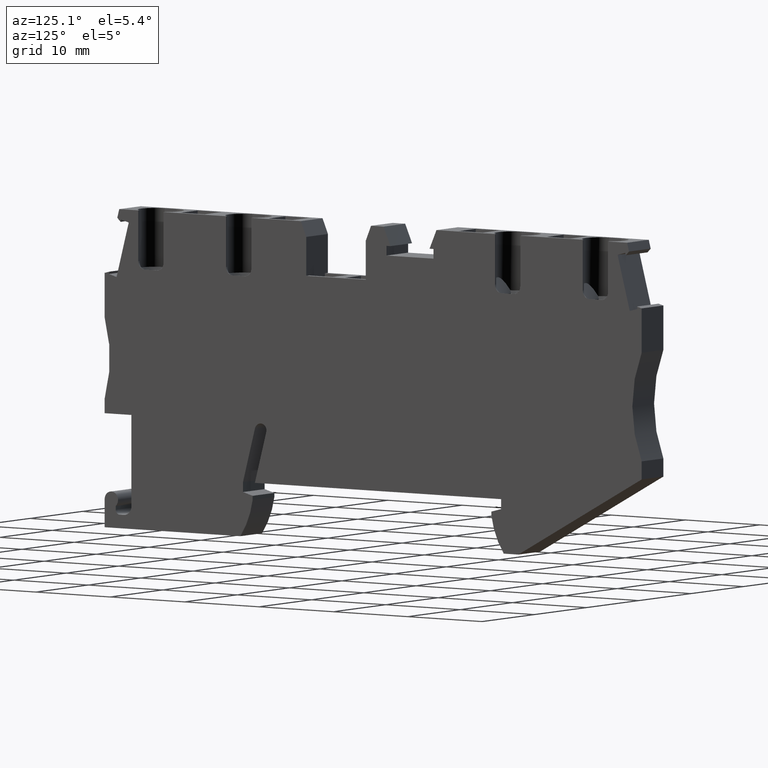
[diagram: clean part render]
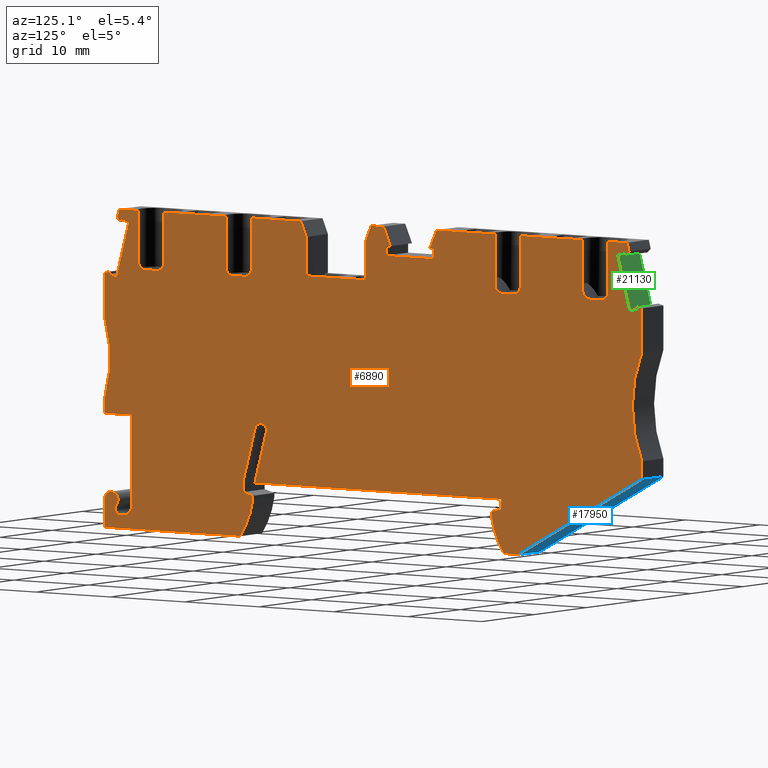
[diagram: same view with three faces highlighted in distinct colors, each labeled with its STEP entity id]
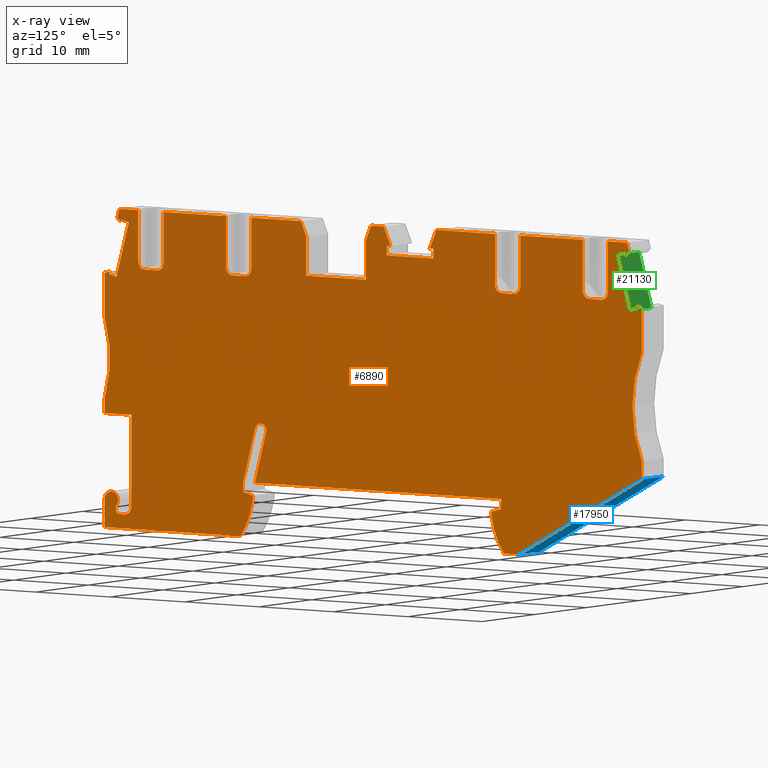
[diagram: x-ray of the same camera — body ghosted, the three highlighted faces saturated]
A machine part, auxiliary view with three faces highlighted in distinct colors.
The next image is the same camera in x-ray (body ghosted, the three faces saturated) — at least one of them is partly hidden behind the body in this view.
Their STEP definitions:

[orange] entity #6890 — the highlighted planar face has unit normal (1, 0, -0).
#10=CARTESIAN_POINT('',(12.2252624823554,27.1050428109026,
4.44089209850063E-16));
#20=DIRECTION('',(0.,0.,1.));
#30=DIRECTION('',(-0.992546151641322,-0.121869343405147,0.));
#40=AXIS2_PLACEMENT_3D('',#10,#20,#30);
#50=PLANE('',#40);
#60=CARTESIAN_POINT('',(19.8437546422496,-8.88178419700125E-15,
-8.88178419700125E-16));
#70=DIRECTION('',(0.139173100960126,0.990268068741562,0.));
#80=VECTOR('',#70,1.);
#90=LINE('',#60,#80);
#100=CARTESIAN_POINT('',(20.1680133300546,2.30722044942675,
4.44089209850063E-16));
#110=VERTEX_POINT('',#100);
#120=CARTESIAN_POINT('',(20.9898097165992,8.15460557620848,
4.44089209850063E-16));
#130=VERTEX_POINT('',#120);
#140=EDGE_CURVE('',#110,#130,#90,.T.);
#150=ORIENTED_EDGE('',*,*,#140,.F.);
#160=CARTESIAN_POINT('',(20.2966220684799,8.25202674688054,
-8.88178419700125E-16));
#170=DIRECTION('',(0.,0.,1.));
#180=DIRECTION('',(0.992546151641322,0.121869343405147,0.));
#190=AXIS2_PLACEMENT_3D('',#160,#170,#180);
#200=CIRCLE('',#190,0.700000000000238);
#210=CARTESIAN_POINT('',(20.3722274973531,8.947931782877,
4.44089209850063E-16));
#220=VERTEX_POINT('',#210);
#230=EDGE_CURVE('',#130,#220,#200,.T.);
#240=ORIENTED_EDGE('',*,*,#230,.F.);
#250=CARTESIAN_POINT('',(20.2376660574214,8.15932971663349,
-8.88178419700125E-16));
#260=DIRECTION('',(0.,0.,1.));
#270=DIRECTION('',(0.992546151641322,0.121869343405147,0.));
#280=AXIS2_PLACEMENT_3D('',#250,#260,#270);
#290=CIRCLE('',#280,0.80000000000001);
#300=CARTESIAN_POINT('',(19.4454516024282,8.27066819740211,
4.44089209850063E-16));
#310=VERTEX_POINT('',#300);
#320=EDGE_CURVE('',#220,#310,#290,.T.);
#330=ORIENTED_EDGE('',*,*,#320,.F.);
#340=CARTESIAN_POINT('',(18.2830849904164,-8.88178419700125E-15,
-8.88178419700125E-16));
#350=DIRECTION('',(0.139173100960267,0.990268068741542,0.));
#360=VECTOR('',#350,1.);
#370=LINE('',#340,#360);
#380=CARTESIAN_POINT('',(18.5799394874287,2.11222949998677,
4.44089209850063E-16));
#390=VERTEX_POINT('',#380);
#400=EDGE_CURVE('',#390,#310,#370,.T.);
#410=ORIENTED_EDGE('',*,*,#400,.T.);
#420=CARTESIAN_POINT('',(18.83928865911,-5.32907051820075E-15,
-8.88178419700125E-16));
#430=DIRECTION('',(0.121869343405147,-0.992546151641322,0.));
#440=VECTOR('',#430,1.);
#450=LINE('',#420,#440);
#460=CARTESIAN_POINT('',(18.7139957651747,1.02042873317322,
4.44089209850063E-16));
#470=VERTEX_POINT('',#460);
#480=EDGE_CURVE('',#390,#470,#450,.T.);
#490=ORIENTED_EDGE('',*,*,#480,.F.);
#500=CARTESIAN_POINT('',(-1.75415237890775E-14,3.65050931862992,
-8.88178419700125E-16));
#510=DIRECTION('',(0.990268068741556,-0.13917310096017,0.));
#520=VECTOR('',#510,1.);
#530=LINE('',#500,#520);
#540=CARTESIAN_POINT('',(20.0467569920995,0.833121357882088,
4.44089209850063E-16));
#550=VERTEX_POINT('',#540);
#560=EDGE_CURVE('',#470,#550,#530,.T.);
#570=ORIENTED_EDGE('',*,*,#560,.F.);
#580=CARTESIAN_POINT('',(20.1490514322064,-8.88178419700125E-15,
-8.88178419700125E-16));
#590=DIRECTION('',(0.121869343405772,-0.992546151641245,0.));
#600=VECTOR('',#590,1.);
#610=LINE('',#580,#600);
#620=CARTESIAN_POINT('',(20.1018012370322,0.384821958285938,
4.44089209850063E-16));
#630=VERTEX_POINT('',#620);
#640=EDGE_CURVE('',#550,#630,#610,.T.);
#650=ORIENTED_EDGE('',*,*,#640,.F.);
#660=CARTESIAN_POINT('',(10.6053593749794,0.644806497501682,
-8.88178419700125E-16));
#670=DIRECTION('',(0.,0.,1.));
#680=DIRECTION('',(0.992546151641322,0.121869343405147,0.));
#690=AXIS2_PLACEMENT_3D('',#660,#670,#680);
#700=CIRCLE('',#690,9.49999999999899);
#710=CARTESIAN_POINT('',(18.9548874062865,-3.88679163719611,
4.44089209850063E-16));
#720=VERTEX_POINT('',#710);
#730=EDGE_CURVE('',#720,#630,#700,.T.);
#740=ORIENTED_EDGE('',*,*,#730,.T.);
#750=CARTESIAN_POINT('',(-1.75415237890775E-14,-6.2141591643413,
-8.88178419700125E-16));
#760=DIRECTION('',(-0.99254615164132,-0.121869343405163,0.));
#770=VECTOR('',#760,1.);
#780=LINE('',#750,#770);
#790=CARTESIAN_POINT('',(0.849796820895289,-6.10981723483097,
4.44089209850063E-16));
#800=VERTEX_POINT('',#790);
#810=EDGE_CURVE('',#720,#800,#780,.T.);
#820=ORIENTED_EDGE('',*,*,#810,.F.);
#830=CARTESIAN_POINT('',(0.0996055945219576,-5.32907051820075E-15,
-8.88178419700125E-16));
#840=DIRECTION('',(-0.121869343404765,0.992546151641369,0.));
#850=VECTOR('',#840,1.);
#860=LINE('',#830,#850);
#870=CARTESIAN_POINT('',(0.472001856340509,-3.03292416474266,
-8.88178419700125E-16));
#880=VERTEX_POINT('',#870);
#890=EDGE_CURVE('',#800,#880,#860,.T.);
#900=ORIENTED_EDGE('',*,*,#890,.F.);
#910=CARTESIAN_POINT('',(1.36529339281751,-2.92324175567805,
-8.88178419700125E-16));
#920=DIRECTION('',(0.,0.,1.));
#930=DIRECTION('',(0.992546151641322,0.121869343405147,0.));
#940=AXIS2_PLACEMENT_3D('',#910,#920,#930);
#950=CIRCLE('',#940,0.89999999999984);
#960=CARTESIAN_POINT('',(2.0425735246699,-3.51594034939811,
4.44089209850063E-16));
#970=VERTEX_POINT('',#960);
#980=EDGE_CURVE('',#970,#880,#950,.T.);
#990=ORIENTED_EDGE('',*,*,#980,.T.);
#1000=CARTESIAN_POINT('',(1.61087033270068,1.24344978758018E-14,
-8.88178419700125E-16));
#1010=DIRECTION('',(-0.121869343407251,0.992546151641064,0.));
#1020=VECTOR('',#1010,1.);
#1030=LINE('',#1000,#1020);
#1040=CARTESIAN_POINT('',(2.09487736154829,-3.94192091644054,0.));
#1050=VERTEX_POINT('',#1040);
#1060=EDGE_CURVE('',#1050,#970,#1030,.T.);
#1070=ORIENTED_EDGE('',*,*,#1060,.T.);
#1080=CARTESIAN_POINT('',(2.59115043736805,-3.88098624473807,
-8.88178419700125E-16));
#1090=DIRECTION('',(-6.71275798814157E-33,5.46710265425285E-32,1.));
#1100=DIRECTION('',(0.992546151641322,0.121869343405147,
6.12247004823167E-45));
#1110=AXIS2_PLACEMENT_3D('',#1080,#1090,#1100);
#1120=CIRCLE('',#1110,0.499999999999091);
#1130=CARTESIAN_POINT('',(2.65208510907052,-4.37725932055782,0.));
#1140=VERTEX_POINT('',#1130);
#1150=EDGE_CURVE('',#1050,#1140,#1120,.T.);
#1160=ORIENTED_EDGE('',*,*,#1150,.F.);
#1170=CARTESIAN_POINT('',(-1.75415237890775E-14,-4.7028944261531,
-8.88178419700125E-16));
#1180=DIRECTION('',(-0.992546151641322,-0.121869343405147,0.));
#1190=VECTOR('',#1180,1.);
#1200=LINE('',#1170,#1190);
#1210=CARTESIAN_POINT('',(3.24761280005544,-4.30413771451564,0.));
#1220=VERTEX_POINT('',#1210);
#1230=EDGE_CURVE('',#1220,#1140,#1200,.T.);
#1240=ORIENTED_EDGE('',*,*,#1230,.T.);
#1250=CARTESIAN_POINT('',(3.12574345665028,-3.31159156287432,
-8.88178419700125E-16));
#1260=DIRECTION('',(-6.71275798814157E-33,5.46710265425285E-32,1.));
#1270=DIRECTION('',(0.992546151641322,0.121869343405147,
6.12247004823167E-45));
#1280=AXIS2_PLACEMENT_3D('',#1250,#1260,#1270);
#1290=CIRCLE('',#1280,1.);
#1300=CARTESIAN_POINT('',(4.1182896082916,-3.18972221946917,0.));
#1310=VERTEX_POINT('',#1300);
#1320=EDGE_CURVE('',#1220,#1310,#1290,.T.);
#1330=ORIENTED_EDGE('',*,*,#1320,.F.);
#1340=CARTESIAN_POINT('',(3.72664096617183,-5.32907051820075E-15,
-8.88178419700125E-16));
#1350=DIRECTION('',(-0.121869343405147,0.992546151641322,0.));
#1360=VECTOR('',#1350,1.);
#1370=LINE('',#1340,#1360);
#1380=CARTESIAN_POINT('',(2.88740923989949,6.83499391210909,
4.44089209850063E-16));
#1390=VERTEX_POINT('',#1380);
#1400=EDGE_CURVE('',#1310,#1390,#1370,.T.);
#1410=ORIENTED_EDGE('',*,*,#1400,.F.);
#1420=CARTESIAN_POINT('',(-2.46469511466785E-14,6.48046463644104,
-8.88178419700125E-16));
#1430=DIRECTION('',(-0.992546151641322,-0.121869343405147,0.));
#1440=VECTOR('',#1430,1.);
#1450=LINE('',#1420,#1440);
#1460=CARTESIAN_POINT('',(-0.685756599573967,6.39626431347608,
4.44089209850063E-16));
#1470=VERTEX_POINT('',#1460);
#1480=EDGE_CURVE('',#1390,#1470,#1450,.T.);
#1490=ORIENTED_EDGE('',*,*,#1480,.F.);
#1500=CARTESIAN_POINT('',(0.0996059055751284,-5.32907051820075E-15,
-8.88178419700125E-16));
#1510=DIRECTION('',(-0.12186934340515,0.992546151641322,0.));
#1520=VECTOR('',#1510,1.);
#1530=LINE('',#1500,#1520);
#1540=CARTESIAN_POINT('',(-0.880747549022022,7.98433815610068,
4.44089209850063E-16));
#1550=VERTEX_POINT('',#1540);
#1560=EDGE_CURVE('',#1470,#1550,#1530,.T.);
#1570=ORIENTED_EDGE('',*,*,#1560,.F.);
#1580=CARTESIAN_POINT('',(-15.631589843338,10.7069566766095,
-8.88178419700125E-16));
#1590=DIRECTION('',(0.,0.,1.));
#1600=DIRECTION('',(0.992546151641322,0.121869343405147,0.));
#1610=AXIS2_PLACEMENT_3D('',#1580,#1590,#1600);
#1620=CIRCLE('',#1610,15.);
#1630=CARTESIAN_POINT('',(-1.9775716396687,16.9172535208728,
4.44089209850063E-16));
#1640=VERTEX_POINT('',#1630);
#1650=EDGE_CURVE('',#1550,#1640,#1620,.T.);
#1660=ORIENTED_EDGE('',*,*,#1650,.F.);
#1670=CARTESIAN_POINT('',(0.0996059055747944,-5.32907051820075E-15,
-8.88178419700125E-16));
#1680=DIRECTION('',(0.121869343405147,-0.992546151641322,0.));
#1690=VECTOR('',#1680,1.);
#1700=LINE('',#1670,#1690);
#1710=CARTESIAN_POINT('',(-2.57472175471222,21.7806509272922,
4.44089209850063E-16));
#1720=VERTEX_POINT('',#1710);
#1730=EDGE_CURVE('',#1720,#1640,#1700,.T.);
#1740=ORIENTED_EDGE('',*,*,#1730,.T.);
#1750=CARTESIAN_POINT('',(-1.75415237890775E-14,22.8209060404026,
-8.88178419700125E-16));
#1760=DIRECTION('',(-0.927183854569495,-0.374606593409211,0.));
#1770=VECTOR('',#1760,1.);
#1780=LINE('',#1750,#1770);
#1790=CARTESIAN_POINT('',(-1.96144346353026,22.0284314406599,
4.44089209850063E-16));
#1800=VERTEX_POINT('',#1790);
#1810=EDGE_CURVE('',#1800,#1720,#1780,.T.);
#1820=ORIENTED_EDGE('',*,*,#1810,.T.);
#1830=CARTESIAN_POINT('',(-5.05733760540783,-5.32907051820075E-15,
-8.88178419700125E-16));
#1840=DIRECTION('',(0.139173100961072,0.990268068741429,0.));
#1850=VECTOR('',#1840,1.);
#1860=LINE('',#1830,#1850);
#1870=CARTESIAN_POINT('',(-1.99934135957832,21.7587738985795,
4.44089209850063E-16));
#1880=VERTEX_POINT('',#1870);
#1890=EDGE_CURVE('',#1880,#1800,#1860,.T.);
#1900=ORIENTED_EDGE('',*,*,#1890,.T.);
#1910=CARTESIAN_POINT('',(-1.75415237890775E-14,21.4777847950483,
-8.88178419700125E-16));
#1920=DIRECTION('',(-0.990268068741498,0.139173100960584,0.));
#1930=VECTOR('',#1920,1.);
#1940=LINE('',#1910,#1930);
#1950=CARTESIAN_POINT('',(-0.939754526023855,21.6098586805515,
4.44089209850063E-16));
#1960=VERTEX_POINT('',#1950);
#1970=EDGE_CURVE('',#1960,#1880,#1940,.T.);
#1980=ORIENTED_EDGE('',*,*,#1970,.T.);
#1990=CARTESIAN_POINT('',(-3.97682210279349,-5.32907051820075E-15,
-8.88178419700125E-16));
#2000=DIRECTION('',(0.139173100960254,0.990268068741544,0.));
#2010=VECTOR('',#2000,1.);
#2020=LINE('',#1990,#2010);
#2030=CARTESIAN_POINT('',(-0.0594846624503389,27.8733042153411,
4.44089209850063E-16));
#2040=VERTEX_POINT('',#2030);
#2050=EDGE_CURVE('',#1960,#2040,#2020,.T.);
#2060=ORIENTED_EDGE('',*,*,#2050,.F.);
#2070=CARTESIAN_POINT('',(-1.75415237890775E-14,27.8649441912284,
-8.88178419700125E-16));
#2080=DIRECTION('',(0.990268068741587,-0.139173100959946,0.));
#2090=VECTOR('',#2080,1.);
#2100=LINE('',#2070,#2090);
#2110=CARTESIAN_POINT('',(-1.11907149600474,28.0222194333684,
4.44089209850063E-16));
#2120=VERTEX_POINT('',#2110);
#2130=EDGE_CURVE('',#2120,#2040,#2100,.T.);
#2140=ORIENTED_EDGE('',*,*,#2130,.T.);
#2150=CARTESIAN_POINT('',(-5.05733760536636,-8.88178419700125E-15,
-8.88178419700125E-16));
#2160=DIRECTION('',(0.139173100959457,0.990268068741656,0.));
#2170=VECTOR('',#2160,1.);
#2180=LINE('',#2150,#2170);
#2190=CARTESIAN_POINT('',(-1.15696939205302,27.7525618912832,
4.44089209850063E-16));
#2200=VERTEX_POINT('',#2190);
#2210=EDGE_CURVE('',#2200,#2120,#2180,.T.);
#2220=ORIENTED_EDGE('',*,*,#2210,.T.);
#2230=CARTESIAN_POINT('',(-1.75415237890775E-14,26.8486383349665,
-8.88178419700125E-16));
#2240=DIRECTION('',(-0.788010753607553,0.615661475324594,0.));
#2250=VECTOR('',#2240,1.);
#2260=LINE('',#2230,#2250);
#2270=CARTESIAN_POINT('',(-1.63922510601572,28.129341348902,
4.44089209850063E-16));
#2280=VERTEX_POINT('',#2270);
#2290=EDGE_CURVE('',#2200,#2280,#2260,.T.);
#2300=ORIENTED_EDGE('',*,*,#2290,.F.);
#2310=CARTESIAN_POINT('',(-5.59254621883093,-8.88178419700125E-15,
-8.88178419700125E-16));
#2320=DIRECTION('',(-0.139173100960481,-0.990268068741512,0.));
#2330=VECTOR('',#2320,1.);
#2340=LINE('',#2310,#2330);
#2350=CARTESIAN_POINT('',(-1.50051398889334,29.1163222318297,
4.44089209850063E-16));
#2360=VERTEX_POINT('',#2350);
#2370=EDGE_CURVE('',#2360,#2280,#2340,.T.);
#2380=ORIENTED_EDGE('',*,*,#2370,.T.);
#2390=CARTESIAN_POINT('',(-1.75415237890775E-14,29.3005621830844,
-8.88178419700125E-16));
#2400=DIRECTION('',(-0.992546151641337,-0.121869343405022,0.));
#2410=VECTOR('',#2400,1.);
#2420=LINE('',#2390,#2410);
#2430=CARTESIAN_POINT('',(1.04517410847593,29.4288934270606,
4.44089209850063E-16));
#2440=VERTEX_POINT('',#2430);
#2450=EDGE_CURVE('',#2440,#2360,#2420,.T.);
#2460=ORIENTED_EDGE('',*,*,#2450,.T.);
#2470=CARTESIAN_POINT('',(4.65858786577217,1.24344978758018E-14,
-8.88178419700125E-16));
#2480=DIRECTION('',(-0.121869343405022,0.992546151641337,0.));
#2490=VECTOR('',#2480,1.);
#2500=LINE('',#2470,#2490);
#2510=CARTESIAN_POINT('',(1.72764243154429,23.8706349778672,
4.44089209850063E-16));
#2520=VERTEX_POINT('',#2510);
#2530=EDGE_CURVE('',#2520,#2440,#2500,.T.);
#2540=ORIENTED_EDGE('',*,*,#2530,.T.);
#2550=CARTESIAN_POINT('',(2.62093396802218,23.9803173869318,
-8.88178419700125E-16));
#2560=DIRECTION('',(-4.80689802786436E-32,3.91490427828702E-31,-1.));
#2570=DIRECTION('',(-0.992546151641322,-0.121869343405147,
6.17447135843123E-45));
#2580=AXIS2_PLACEMENT_3D('',#2550,#2560,#2570);
#2590=CIRCLE('',#2580,0.9);
#2600=CARTESIAN_POINT('',(2.73061637708641,23.0870258504544,
4.44089209850063E-16));
#2610=VERTEX_POINT('',#2600);
#2620=EDGE_CURVE('',#2610,#2520,#2590,.T.);
#2630=ORIENTED_EDGE('',*,*,#2620,.T.);
#2640=CARTESIAN_POINT('',(-1.75415237890775E-14,22.7517483175992,
-8.88178419700125E-16));
#2650=DIRECTION('',(0.992546151641308,0.121869343405264,0.));
#2660=VECTOR('',#2650,1.);
#2670=LINE('',#2640,#2660);
#2680=CARTESIAN_POINT('',(4.31869021971398,23.282016799903,
4.44089209850062E-16));
#2690=VERTEX_POINT('',#2680);
#2700=EDGE_CURVE('',#2610,#2690,#2670,.T.);
#2710=ORIENTED_EDGE('',*,*,#2700,.F.);
#2720=CARTESIAN_POINT('',(4.20900781064934,24.1753083363802,
-8.88178419700125E-16));
#2730=DIRECTION('',(-4.80689802786436E-32,3.91490427828702E-31,-1.));
#2740=DIRECTION('',(-0.992546151641322,-0.121869343405147,
6.17447135843123E-45));
#2750=AXIS2_PLACEMENT_3D('',#2720,#2730,#2740);
#2760=CIRCLE('',#2750,0.9);
#2770=CARTESIAN_POINT('',(5.10229934712653,24.2849907454449,
4.44089209850063E-16));
#2780=VERTEX_POINT('',#2770);
#2790=EDGE_CURVE('',#2780,#2690,#2760,.T.);
#2800=ORIENTED_EDGE('',*,*,#2790,.T.);
#2810=CARTESIAN_POINT('',(8.08412127233326,1.24344978758018E-14,
-8.88178419700125E-16));
#2820=DIRECTION('',(0.121869343405022,-0.992546151641337,0.));
#2830=VECTOR('',#2820,1.);
#2840=LINE('',#2810,#2830);
#2850=CARTESIAN_POINT('',(4.41983102405821,29.8432491946379,
4.44089209850063E-16));
#2860=VERTEX_POINT('',#2850);
#2870=EDGE_CURVE('',#2860,#2780,#2840,.T.);
#2880=ORIENTED_EDGE('',*,*,#2870,.T.);
#2890=CARTESIAN_POINT('',(12.7572186978437,30.8669516792398,
4.44089209850063E-16));
#2900=VERTEX_POINT('',#2890);
#2910=EDGE_CURVE('',#2900,#2860,#2420,.T.);
#2920=ORIENTED_EDGE('',*,*,#2910,.T.);
#2930=CARTESIAN_POINT('',(16.5472038061864,1.24344978758018E-14,
-8.88178419700125E-16));
#2940=DIRECTION('',(-0.121869343405022,0.992546151641337,0.));
#2950=VECTOR('',#2940,1.);
#2960=LINE('',#2930,#2950);
#2970=CARTESIAN_POINT('',(13.4396870209119,25.3086932300479,
4.44089209850063E-16));
#2980=VERTEX_POINT('',#2970);
#2990=EDGE_CURVE('',#2980,#2900,#2960,.T.);
#3000=ORIENTED_EDGE('',*,*,#2990,.T.);
#3010=CARTESIAN_POINT('',(14.3329785573898,25.4183756391126,
-8.88178419700125E-16));
#3020=DIRECTION('',(-4.80689802786436E-32,3.91490427828702E-31,-1.));
#3030=DIRECTION('',(-0.992546151641322,-0.121869343405147,
6.17447135843123E-45));
#3040=AXIS2_PLACEMENT_3D('',#3010,#3020,#3030);
#3050=CIRCLE('',#3040,0.9);
#3060=CARTESIAN_POINT('',(14.442660966454,24.5250841026351,
4.44089209850063E-16));
#3070=VERTEX_POINT('',#3060);
#3080=EDGE_CURVE('',#3070,#2980,#3050,.T.);
#3090=ORIENTED_EDGE('',*,*,#3080,.T.);
#3100=CARTESIAN_POINT('',(-1.75415237890775E-14,22.7517483175978,
-8.88178419700125E-16));
#3110=DIRECTION('',(0.992546151641308,0.121869343405264,0.));
#3120=VECTOR('',#3110,1.);
#3130=LINE('',#3100,#3120);
#3140=CARTESIAN_POINT('',(16.0307348090816,24.7200750520837,
4.44089209850063E-16));
#3150=VERTEX_POINT('',#3140);
#3160=EDGE_CURVE('',#3070,#3150,#3130,.T.);
#3170=ORIENTED_EDGE('',*,*,#3160,.F.);
#3180=CARTESIAN_POINT('',(15.9210524000169,25.6133665885609,
-8.88178419700125E-16));
#3190=DIRECTION('',(-4.80689802786436E-32,3.91490427828702E-31,-1.));
#3200=DIRECTION('',(-0.992546151641322,-0.121869343405147,
6.17447135843123E-45));
#3210=AXIS2_PLACEMENT_3D('',#3180,#3190,#3200);
#3220=CIRCLE('',#3210,0.9);
#3230=CARTESIAN_POINT('',(16.8143439364934,25.7230489976255,
4.44089209850063E-16));
#3240=VERTEX_POINT('',#3230);
#3250=EDGE_CURVE('',#3240,#3150,#3220,.T.);
#3260=ORIENTED_EDGE('',*,*,#3250,.T.);
#3270=CARTESIAN_POINT('',(19.9727372127475,1.24344978758018E-14,
-8.88178419700125E-16));
#3280=DIRECTION('',(0.121869343405022,-0.992546151641337,0.));
#3290=VECTOR('',#3280,1.);
#3300=LINE('',#3270,#3290);
#3310=CARTESIAN_POINT('',(16.131875613426,31.2813074468171,
4.44089209850063E-16));
#3320=VERTEX_POINT('',#3310);
#3330=EDGE_CURVE('',#3320,#3240,#3300,.T.);
#3340=ORIENTED_EDGE('',*,*,#3330,.T.);
#3350=CARTESIAN_POINT('',(22.7387593504515,32.0925307654035,
4.44089209850063E-16));
#3360=VERTEX_POINT('',#3350);
#3370=EDGE_CURVE('',#3360,#3320,#2420,.T.);
#3380=ORIENTED_EDGE('',*,*,#3370,.T.);
#3390=CARTESIAN_POINT('',(41.2011308712362,-5.32907051820075E-15,
-8.88178419700125E-16));
#3400=DIRECTION('',(-0.498657173381252,0.866799298243498,0.));
#3410=VECTOR('',#3400,1.);
#3420=LINE('',#3390,#3410);
#3430=CARTESIAN_POINT('',(23.6590813655684,30.4927653966389,
4.44089209850063E-16));
#3440=VERTEX_POINT('',#3430);
#3450=EDGE_CURVE('',#3440,#3360,#3420,.T.);
#3460=ORIENTED_EDGE('',*,*,#3450,.T.);
#3470=CARTESIAN_POINT('',(27.40312217551,-8.88178419700125E-15,
-8.88178419700125E-16));
#3480=DIRECTION('',(-0.12186934340515,0.992546151641322,0.));
#3490=VECTOR('',#3480,1.);
#3500=LINE('',#3470,#3490);
#3510=CARTESIAN_POINT('',(24.1831195422103,26.2248169445829,
4.44089209850063E-16));
#3520=VERTEX_POINT('',#3510);
#3530=EDGE_CURVE('',#3520,#3440,#3500,.T.);
#3540=ORIENTED_EDGE('',*,*,#3530,.T.);
#3550=CARTESIAN_POINT('',(-1.75415237890775E-14,23.2555032303301,
-8.88178419700125E-16));
#3560=DIRECTION('',(-0.992546151641322,-0.121869343405147,0.));
#3570=VECTOR('',#3560,1.);
#3580=LINE('',#3550,#3570);
#3590=CARTESIAN_POINT('',(32.1234887553407,27.199771691824,
4.44089209850063E-16));
#3600=VERTEX_POINT('',#3590);
#3610=EDGE_CURVE('',#3600,#3520,#3580,.T.);
#3620=ORIENTED_EDGE('',*,*,#3610,.T.);
#3630=CARTESIAN_POINT('',(35.4632007791807,-8.88178419700125E-15,
-8.88178419700125E-16));
#3640=DIRECTION('',(0.121869343405153,-0.992546151641321,0.));
#3650=VECTOR('',#3640,1.);
#3660=LINE('',#3630,#3650);
#3670=CARTESIAN_POINT('',(31.5994505786988,31.4677201438798,
4.44089209850063E-16));
#3680=VERTEX_POINT('',#3670);
#3690=EDGE_CURVE('',#3680,#3600,#3660,.T.);
#3700=ORIENTED_EDGE('',*,*,#3690,.T.);
#3710=CARTESIAN_POINT('',(22.6289845756448,-8.88178419700125E-15,
-8.88178419700125E-16));
#3720=DIRECTION('',(-0.274147194873168,-0.961687743263464,0.));
#3730=VECTOR('',#3720,1.);
#3740=LINE('',#3710,#3730);
#3750=CARTESIAN_POINT('',(32.1054168262382,33.2426116906957,
4.44089209850063E-16));
#3760=VERTEX_POINT('',#3750);
#3770=EDGE_CURVE('',#3760,#3680,#3740,.T.);
#3780=ORIENTED_EDGE('',*,*,#3770,.T.);
#3790=CARTESIAN_POINT('',(-1.75415237890775E-14,29.3005621830774,
-8.88178419700125E-16));
#3800=DIRECTION('',(-0.992546151641307,-0.121869343405268,0.));
#3810=VECTOR('',#3800,1.);
#3820=LINE('',#3790,#3810);
#3830=CARTESIAN_POINT('',(33.7648010461225,33.4463584535037,
4.44089209850063E-16));
#3840=VERTEX_POINT('',#3830);
#3850=EDGE_CURVE('',#3840,#3760,#3820,.T.);
#3860=ORIENTED_EDGE('',*,*,#3850,.T.);
#3870=CARTESIAN_POINT('',(53.6422195780393,-5.32907051820075E-15,
-8.88178419700125E-16));
#3880=DIRECTION('',(0.51089298590022,-0.859644320028905,0.));
#3890=VECTOR('',#3880,1.);
#3900=LINE('',#3870,#3890);
#3910=CARTESIAN_POINT('',(34.9394936524423,31.4697843867773,
4.44089209850063E-16));
#3920=VERTEX_POINT('',#3910);
#3930=EDGE_CURVE('',#3840,#3920,#3900,.T.);
#3940=ORIENTED_EDGE('',*,*,#3930,.F.);
#3950=CARTESIAN_POINT('',(-2.46469511466785E-14,27.1797540004923,
-8.88178419700125E-16));
#3960=DIRECTION('',(0.992546151641322,0.121869343405147,0.));
#3970=VECTOR('',#3960,1.);
#3980=LINE('',#3950,#3970);
#3990=CARTESIAN_POINT('',(34.4155300604791,31.405449747209,
4.44089209850063E-16));
#4000=VERTEX_POINT('',#3990);
#4010=EDGE_CURVE('',#4000,#3920,#3980,.T.);
#4020=ORIENTED_EDGE('',*,*,#4010,.T.);
#4030=CARTESIAN_POINT('',(38.2716344176484,-5.32907051820075E-15,
-8.88178419700125E-16));
#4040=DIRECTION('',(-0.121869343405147,0.992546151641322,0.));
#4050=VECTOR('',#4040,1.);
#4060=LINE('',#4030,#4050);
#4070=CARTESIAN_POINT('',(34.5459302579226,30.3434253649531,
4.44089209850063E-16));
#4080=VERTEX_POINT('',#4070);
#4090=EDGE_CURVE('',#4080,#4000,#4060,.T.);
#4100=ORIENTED_EDGE('',*,*,#4090,.T.);
#4110=CARTESIAN_POINT('',(-2.46469511466785E-14,26.1017184872538,
-8.88178419700125E-16));
#4120=DIRECTION('',(-0.992546151641329,-0.12186934340509,0.));
#4130=VECTOR('',#4120,1.);
#4140=LINE('',#4110,#4130);
#4150=CARTESIAN_POINT('',(40.8237846670542,31.1142489619903,
4.44089209850063E-16));
#4160=VERTEX_POINT('',#4150);
#4170=EDGE_CURVE('',#4160,#4080,#4140,.T.);
#4180=ORIENTED_EDGE('',*,*,#4170,.T.);
#4190=CARTESIAN_POINT('',(44.6441340636758,-8.88178419700125E-15,
-8.88178419700125E-16));
#4200=DIRECTION('',(0.121869343405147,-0.992546151641322,0.));
#4210=VECTOR('',#4200,1.);
#4220=LINE('',#4190,#4210);
#4230=CARTESIAN_POINT('',(40.6933844696107,32.1762733442466,
4.44089209850063E-16));
#4240=VERTEX_POINT('',#4230);
#4250=EDGE_CURVE('',#4240,#4160,#4220,.T.);
#4260=ORIENTED_EDGE('',*,*,#4250,.T.);
#4270=CARTESIAN_POINT('',(-2.46469511466785E-14,27.1797540004923,
-8.88178419700125E-16));
#4280=DIRECTION('',(0.992546151641322,0.121869343405147,0.));
#4290=VECTOR('',#4280,1.);
#4300=LINE('',#4270,#4290);
#4310=CARTESIAN_POINT('',(40.169420877646,32.1119387046781,
4.44089209850063E-16));
#4320=VERTEX_POINT('',#4310);
#4330=EDGE_CURVE('',#4320,#4240,#4300,.T.);
#4340=ORIENTED_EDGE('',*,*,#4330,.T.);
#4350=CARTESIAN_POINT('',(30.5211237682856,-5.32907051820075E-15,
-8.88178419700125E-16));
#4360=DIRECTION('',(0.287750497361314,0.957705409438788,0.));
#4370=VECTOR('',#4360,1.);
#4380=LINE('',#4350,#4370);
#4390=CARTESIAN_POINT('',(40.8310435482316,34.3139839363548,
4.44089209850063E-16));
#4400=VERTEX_POINT('',#4390);
#4410=EDGE_CURVE('',#4320,#4400,#4380,.T.);
#4420=ORIENTED_EDGE('',*,*,#4410,.F.);
#4430=CARTESIAN_POINT('',(-1.75415237890775E-14,29.3005621830826,
-8.88178419700125E-16));
#4440=DIRECTION('',(0.992546151641336,0.121869343405031,0.));
#4450=VECTOR('',#4440,1.);
#4460=LINE('',#4430,#4450);
#4470=CARTESIAN_POINT('',(48.637762079678,35.2725284433301,
4.44089209850063E-16));
#4480=VERTEX_POINT('',#4470);
#4490=EDGE_CURVE('',#4400,#4480,#4460,.T.);
#4500=ORIENTED_EDGE('',*,*,#4490,.F.);
#4510=CARTESIAN_POINT('',(52.968683996532,1.24344978758018E-14,
-8.88178419700125E-16));
#4520=DIRECTION('',(0.121869343405273,-0.992546151641307,0.));
#4530=VECTOR('',#4520,1.);
#4540=LINE('',#4510,#4530);
#4550=CARTESIAN_POINT('',(49.3202304027475,29.7142699941385,
4.44089209850063E-16));
#4560=VERTEX_POINT('',#4550);
#4570=EDGE_CURVE('',#4480,#4560,#4540,.T.);
#4580=ORIENTED_EDGE('',*,*,#4570,.F.);
#4590=CARTESIAN_POINT('',(50.2135219392241,29.823952403203,
-8.88178419700125E-16));
#4600=DIRECTION('',(4.80689802786314E-32,-3.91490427828703E-31,1.));
#4610=DIRECTION('',(0.992546151641322,0.121869343405148,
6.16899753630496E-45));
#4620=AXIS2_PLACEMENT_3D('',#4590,#4600,#4610);
#4630=CIRCLE('',#4620,0.9);
#4640=CARTESIAN_POINT('',(50.3232043482887,28.9306608667258,
4.44089209850062E-16));
#4650=VERTEX_POINT('',#4640);
#4660=EDGE_CURVE('',#4560,#4650,#4630,.T.);
#4670=ORIENTED_EDGE('',*,*,#4660,.F.);
#4680=CARTESIAN_POINT('',(-1.75415237890775E-14,22.7517483176,
-8.88178419700125E-16));
#4690=DIRECTION('',(-0.992546151641336,-0.121869343405031,0.));
#4700=VECTOR('',#4690,1.);
#4710=LINE('',#4680,#4700);
#4720=CARTESIAN_POINT('',(51.9112781909163,29.1256518161742,
1.59872115546023E-14));
#4730=VERTEX_POINT('',#4720);
#4740=EDGE_CURVE('',#4730,#4650,#4710,.T.);
#4750=ORIENTED_EDGE('',*,*,#4740,.T.);
#4760=CARTESIAN_POINT('',(51.8015957818512,30.0189433526514,
-8.88178419700125E-16));
#4770=DIRECTION('',(4.80689802786314E-32,-3.91490427828703E-31,1.));
#4780=DIRECTION('',(0.992546151641322,0.121869343405148,
6.16899753630496E-45));
#4790=AXIS2_PLACEMENT_3D('',#4760,#4770,#4780);
#4800=CIRCLE('',#4790,0.9);
#4810=CARTESIAN_POINT('',(52.6948873183291,30.1286257617161,
4.44089209850063E-16));
#4820=VERTEX_POINT('',#4810);
#4830=EDGE_CURVE('',#4730,#4820,#4800,.T.);
#4840=ORIENTED_EDGE('',*,*,#4830,.F.);
#4850=CARTESIAN_POINT('',(56.3942174030932,1.24344978758018E-14,
-8.88178419700125E-16));
#4860=DIRECTION('',(-0.121869343405273,0.992546151641307,0.));
#4870=VECTOR('',#4860,1.);
#4880=LINE('',#4850,#4870);
#4890=CARTESIAN_POINT('',(52.0124189952596,35.6868842109073,
4.44089209850063E-16));
#4900=VERTEX_POINT('',#4890);
#4910=EDGE_CURVE('',#4820,#4900,#4880,.T.);
#4920=ORIENTED_EDGE('',*,*,#4910,.F.);
#4930=CARTESIAN_POINT('',(60.3498066690457,36.7105866955094,
4.44089209850063E-16));
#4940=VERTEX_POINT('',#4930);
#4950=EDGE_CURVE('',#4900,#4940,#4460,.T.);
#4960=ORIENTED_EDGE('',*,*,#4950,.F.);
#4970=CARTESIAN_POINT('',(64.8572999369465,1.24344978758018E-14,
-8.88178419700125E-16));
#4980=DIRECTION('',(0.121869343405273,-0.992546151641307,0.));
#4990=VECTOR('',#4980,1.);
#5000=LINE('',#4970,#4990);
#5010=CARTESIAN_POINT('',(61.0322749921153,31.1523282463173,
4.44089209850063E-16));
#5020=VERTEX_POINT('',#5010);
#5030=EDGE_CURVE('',#4940,#5020,#5000,.T.);
#5040=ORIENTED_EDGE('',*,*,#5030,.F.);
#5050=CARTESIAN_POINT('',(61.9255665285918,31.2620106553818,
-8.88178419700125E-16));
#5060=DIRECTION('',(4.80689802786314E-32,-3.91490427828703E-31,1.));
#5070=DIRECTION('',(0.992546151641322,0.121869343405148,
6.16899753630496E-45));
#5080=AXIS2_PLACEMENT_3D('',#5050,#5060,#5070);
#5090=CIRCLE('',#5080,0.9);
#5100=CARTESIAN_POINT('',(62.0352489376565,30.3687191189046,
4.44089209850063E-16));
#5110=VERTEX_POINT('',#5100);
#5120=EDGE_CURVE('',#5020,#5110,#5090,.T.);
#5130=ORIENTED_EDGE('',*,*,#5120,.F.);
#5140=CARTESIAN_POINT('',(-1.75415237890775E-14,22.7517483175994,
-8.88178419700125E-16));
#5150=DIRECTION('',(-0.992546151641336,-0.121869343405031,0.));
#5160=VECTOR('',#5150,1.);
#5170=LINE('',#5140,#5160);
#5180=CARTESIAN_POINT('',(63.6233227802841,30.5637100683528,
4.44089209850063E-16));
#5190=VERTEX_POINT('',#5180);
#5200=EDGE_CURVE('',#5190,#5110,#5170,.T.);
#5210=ORIENTED_EDGE('',*,*,#5200,.T.);
#5220=CARTESIAN_POINT('',(63.513640371219,31.4570016048301,
-8.88178419700125E-16));
#5230=DIRECTION('',(4.80689802786314E-32,-3.91490427828703E-31,1.));
#5240=DIRECTION('',(0.992546151641322,0.121869343405148,
6.16899753630496E-45));
#5250=AXIS2_PLACEMENT_3D('',#5220,#5230,#5240);
#5260=CIRCLE('',#5250,0.9);
#5270=CARTESIAN_POINT('',(64.4069319076962,31.5666840138948,
4.44089209850063E-16));
#5280=VERTEX_POINT('',#5270);
#5290=EDGE_CURVE('',#5190,#5280,#5260,.T.);
#5300=ORIENTED_EDGE('',*,*,#5290,.F.);
#5310=CARTESIAN_POINT('',(68.2828333435077,1.24344978758018E-14,
-8.88178419700125E-16));
#5320=DIRECTION('',(-0.121869343405273,0.992546151641307,0.));
#5330=VECTOR('',#5320,1.);
#5340=LINE('',#5310,#5330);
#5350=CARTESIAN_POINT('',(63.7244635846274,37.1249424630867,
4.44089209850063E-16));
#5360=VERTEX_POINT('',#5350);
#5370=EDGE_CURVE('',#5280,#5360,#5340,.T.);
#5380=ORIENTED_EDGE('',*,*,#5370,.F.);
#5390=CARTESIAN_POINT('',(66.2701516819991,37.4375136583179,
4.44089209850063E-16));
#5400=VERTEX_POINT('',#5390);
#5410=EDGE_CURVE('',#5360,#5400,#4460,.T.);
#5420=ORIENTED_EDGE('',*,*,#5410,.F.);
#5430=CARTESIAN_POINT('',(81.3958890300397,-5.32907051820075E-15,
-8.88178419700125E-16));
#5440=DIRECTION('',(0.374606593416301,-0.92718385456663,0.));
#5450=VECTOR('',#5440,1.);
#5460=LINE('',#5430,#5450);
#5470=CARTESIAN_POINT('',(66.6435147722446,36.5134075821014,
4.44089209850063E-16));
#5480=VERTEX_POINT('',#5470);
#5490=EDGE_CURVE('',#5400,#5480,#5460,.T.);
#5500=ORIENTED_EDGE('',*,*,#5490,.F.);
#5510=CARTESIAN_POINT('',(38.116114253488,-5.32907051820075E-15,
-8.88178419700125E-16));
#5520=DIRECTION('',(0.615661475326723,0.788010753605891,0.));
#5530=VECTOR('',#5520,1.);
#5540=LINE('',#5510,#5530);
#5550=CARTESIAN_POINT('',(66.2667353146246,36.0311518681398,
4.44089209850063E-16));
#5560=VERTEX_POINT('',#5550);
#5570=EDGE_CURVE('',#5560,#5480,#5540,.T.);
#5580=ORIENTED_EDGE('',*,*,#5570,.T.);
#5590=CARTESIAN_POINT('',(80.8242656163767,-5.32907051820075E-15,
-8.88178419700125E-16));
#5600=DIRECTION('',(0.374606593415343,-0.927183854567017,0.));
#5610=VECTOR('',#5600,1.);
#5620=LINE('',#5590,#5610);
#5630=CARTESIAN_POINT('',(66.1647270843101,36.2836310979318,
4.44089209850063E-16));
#5640=VERTEX_POINT('',#5630);
#5650=EDGE_CURVE('',#5640,#5560,#5620,.T.);
#5660=ORIENTED_EDGE('',*,*,#5650,.T.);
#5670=CARTESIAN_POINT('',(-1.75415237890775E-14,9.55134613065412,
-8.88178419700125E-16));
#5680=DIRECTION('',(0.927183854566833,0.3746065934158,0.));
#5690=VECTOR('',#5680,1.);
#5700=LINE('',#5670,#5690);
#5710=CARTESIAN_POINT('',(65.1726403599228,35.8828020429766,
4.44089209850063E-16));
#5720=VERTEX_POINT('',#5710);
#5730=EDGE_CURVE('',#5720,#5640,#5700,.T.);
#5740=ORIENTED_EDGE('',*,*,#5730,.T.);
#5750=CARTESIAN_POINT('',(79.6702334417446,-5.32907051820075E-15,
-8.88178419700125E-16));
#5760=DIRECTION('',(-0.374606593416089,0.927183854566716,0.));
#5770=VECTOR('',#5760,1.);
#5780=LINE('',#5750,#5770);
#5790=CARTESIAN_POINT('',(67.5420270632793,30.0183641628427,
4.44089209850063E-16));
#5800=VERTEX_POINT('',#5790);
#5810=EDGE_CURVE('',#5800,#5720,#5780,.T.);
#5820=ORIENTED_EDGE('',*,*,#5810,.T.);
#5830=CARTESIAN_POINT('',(-1.75415237890775E-14,2.72961388316884,
-8.88178419700125E-16));
#5840=DIRECTION('',(-0.927183854566592,-0.374606593416397,0.));
#5850=VECTOR('',#5840,1.);
#5860=LINE('',#5830,#5850);
#5870=CARTESIAN_POINT('',(68.5341137876654,30.4191932177982,
4.44089209850063E-16));
#5880=VERTEX_POINT('',#5870);
#5890=EDGE_CURVE('',#5880,#5800,#5860,.T.);
#5900=ORIENTED_EDGE('',*,*,#5890,.T.);
#5910=CARTESIAN_POINT('',(80.8242656164388,-5.32907051820075E-15,
-8.88178419700125E-16));
#5920=DIRECTION('',(0.374606593416855,-0.927183854566407,0.));
#5930=VECTOR('',#5920,1.);
#5940=LINE('',#5910,#5930);
#5950=CARTESIAN_POINT('',(68.4321055573521,30.6716724475863,
4.44089209850063E-16));
#5960=VERTEX_POINT('',#5950);
#5970=EDGE_CURVE('',#5960,#5880,#5940,.T.);
#5980=ORIENTED_EDGE('',*,*,#5970,.T.);
#5990=CARTESIAN_POINT('',(-1.75415237890775E-14,40.2891776825544,
-8.88178419700125E-16));
#6000=DIRECTION('',(0.990268068742576,-0.139173100952908,0.));
#6010=VECTOR('',#6000,1.);
#6020=LINE('',#5990,#6010);
#6030=CARTESIAN_POINT('',(69.0871103937917,30.5796175211439,
4.44089209850063E-16));
#6040=VERTEX_POINT('',#6030);
#6050=EDGE_CURVE('',#5960,#6040,#6020,.T.);
#6060=ORIENTED_EDGE('',*,*,#6050,.F.);
#6070=CARTESIAN_POINT('',(72.8418153037041,-5.32907051820075E-15,
-8.88178419700125E-16));
#6080=DIRECTION('',(0.121869343405147,-0.992546151641322,0.));
#6090=VECTOR('',#6080,1.);
#6100=LINE('',#6070,#6090);
#6110=CARTESIAN_POINT('',(69.6842605088353,25.7162201147239,
4.44089209850063E-16));
#6120=VERTEX_POINT('',#6110);
#6130=EDGE_CURVE('',#6040,#6120,#6100,.T.);
#6140=ORIENTED_EDGE('',*,*,#6130,.F.);
#6150=CARTESIAN_POINT('',(84.0607301811666,21.4363696780219,
-8.88178419700125E-16));
#6160=DIRECTION('',(0.,0.,1.));
#6170=DIRECTION('',(0.992546151641322,0.121869343405147,0.));
#6180=AXIS2_PLACEMENT_3D('',#6150,#6160,#6170);
#6190=CIRCLE('',#6180,15.);
#6200=CARTESIAN_POINT('',(71.1466926296971,13.805666295028,
4.44089209850063E-16));
#6210=VERTEX_POINT('',#6200);
#6220=EDGE_CURVE('',#6120,#6210,#6190,.T.);
#6230=ORIENTED_EDGE('',*,*,#6220,.F.);
#6240=CARTESIAN_POINT('',(72.8418153037041,-5.32907051820075E-15,
-8.88178419700125E-16));
#6250=DIRECTION('',(0.121869343405147,-0.992546151641322,0.));
#6260=VECTOR('',#6250,1.);
#6270=LINE('',#6240,#6260);
#6280=CARTESIAN_POINT('',(71.390431316507,11.8205739917481,
4.44089209850063E-16));
#6290=VERTEX_POINT('',#6280);
#6300=EDGE_CURVE('',#6210,#6290,#6270,.T.);
#6310=ORIENTED_EDGE('',*,*,#6300,.F.);
#6320=CARTESIAN_POINT('',(-1.75415237890775E-14,-40.0891165681469,
-8.88178419700125E-16));
#6330=DIRECTION('',(-0.808793328533599,-0.588092978804834,0.));
#6340=VECTOR('',#6330,1.);
#6350=LINE('',#6320,#6340);
#6360=CARTESIAN_POINT('',(56.0528727208694,0.668268200037353,
4.44089209850063E-16));
#6370=VERTEX_POINT('',#6360);
#6380=EDGE_CURVE('',#6290,#6370,#6350,.T.);
#6390=ORIENTED_EDGE('',*,*,#6380,.F.);
#6400=CARTESIAN_POINT('',(0.,-6.214159164341,4.44089209850063E-16));
#6410=DIRECTION('',(0.992546151641322,0.121869343405147,0.));
#6420=VECTOR('',#6410,1.);
#6430=LINE('',#6400,#6420);
#6440=CARTESIAN_POINT('',(54.108775151386,0.429563033615931,
4.44089209850063E-16));
#6450=VERTEX_POINT('',#6440);
#6460=EDGE_CURVE('',#6450,#6370,#6430,.T.);
#6470=ORIENTED_EDGE('',*,*,#6460,.T.);
#6480=CARTESIAN_POINT('',(61.113993705743,6.84648698560988,
-8.88178419700125E-16));
#6490=DIRECTION('',(0.,0.,-1.));
#6500=DIRECTION('',(-0.992546151641322,-0.121869343405147,0.));
#6510=AXIS2_PLACEMENT_3D('',#6480,#6490,#6500);
#6520=CIRCLE('',#6510,9.499999999999);
#6530=CARTESIAN_POINT('',(51.9625327047183,4.2968278815913,
4.44089209850063E-16));
#6540=VERTEX_POINT('',#6530);
#6550=EDGE_CURVE('',#6450,#6540,#6520,.T.);
#6560=ORIENTED_EDGE('',*,*,#6550,.F.);
#6570=CARTESIAN_POINT('',(52.4901168294318,-8.88178419700125E-15,
-8.88178419700125E-16));
#6580=DIRECTION('',(-0.121869343404462,0.992546151641406,0.));
#6590=VECTOR('',#6580,1.);
#6600=LINE('',#6570,#6590);
#6610=CARTESIAN_POINT('',(51.9074884597862,4.74512728118737,
4.44089209850063E-16));
#6620=VERTEX_POINT('',#6610);
#6630=EDGE_CURVE('',#6540,#6620,#6600,.T.);
#6640=ORIENTED_EDGE('',*,*,#6630,.F.);
#6650=CARTESIAN_POINT('',(-2.46469511466785E-14,-16.226859373798,
-8.88178419700125E-16));
#6660=DIRECTION('',(0.927183854566812,0.374606593415851,0.));
#6670=VECTOR('',#6660,1.);
#6680=LINE('',#6650,#6670);
#6690=CARTESIAN_POINT('',(53.1553472271283,5.24929494933182,
4.44089209850063E-16));
#6700=VERTEX_POINT('',#6690);
#6710=EDGE_CURVE('',#6620,#6700,#6680,.T.);
#6720=ORIENTED_EDGE('',*,*,#6710,.F.);
#6730=CARTESIAN_POINT('',(53.7998796025319,-8.88178419700125E-15,
-8.88178419700125E-16));
#6740=DIRECTION('',(-0.121869343405147,0.992546151641322,0.));
#6750=VECTOR('',#6740,1.);
#6760=LINE('',#6730,#6750);
#6770=CARTESIAN_POINT('',(53.0212909493827,6.34109571613717,
4.44089209850063E-16));
#6780=VERTEX_POINT('',#6770);
#6790=EDGE_CURVE('',#6700,#6780,#6760,.T.);
#6800=ORIENTED_EDGE('',*,*,#6790,.F.);
#6810=CARTESIAN_POINT('',(0.,-0.169100211587934,4.44089209850063E-16));
#6820=DIRECTION('',(-0.992546151641322,-0.121869343405147,0.));
#6830=VECTOR('',#6820,1.);
#6840=LINE('',#6810,#6830);
#6850=EDGE_CURVE('',#6780,#110,#6840,.T.);
#6860=ORIENTED_EDGE('',*,*,#6850,.F.);
#6870=EDGE_LOOP('',(#6860,#6800,#6720,#6640,#6560,#6470,#6390,#6310,
#6230,#6140,#6060,#5980,#5900,#5820,#5740,#5660,#5580,#5500,#5420,#5380,
#5300,#5210,#5130,#5040,#4960,#4920,#4840,#4750,#4670,#4580,#4500,#4420,
#4340,#4260,#4180,#4100,#4020,#3940,#3860,#3780,#3700,#3620,#3540,#3460,
#3380,#3340,#3260,#3170,#3090,#3000,#2920,#2880,#2800,#2710,#2630,#2540,
#2460,#2380,#2300,#2220,#2140,#2060,#1980,#1900,#1820,#1740,#1660,#1570,
#1490,#1410,#1330,#1240,#1160,#1070,#990,#900,#820,#740,#650,#570,#490,
#410,#330,#240,#150));
#6880=FACE_OUTER_BOUND('',#6870,.T.);
#6890=ADVANCED_FACE('',(#6880),#50,.T.);

[blue] entity #17950 — the highlighted planar face has unit normal (0, -0.4851, 0.8744).
#6280=CARTESIAN_POINT('',(71.390431316507,11.8205739917481,
4.44089209850063E-16));
#6290=VERTEX_POINT('',#6280);
#6320=CARTESIAN_POINT('',(-1.75415237890775E-14,-40.0891165681469,
-8.88178419700125E-16));
#6330=DIRECTION('',(-0.808793328533599,-0.588092978804834,0.));
#6340=VECTOR('',#6330,1.);
#6350=LINE('',#6320,#6340);
#6360=CARTESIAN_POINT('',(56.0528727208694,0.668268200037353,
4.44089209850063E-16));
#6370=VERTEX_POINT('',#6360);
#6380=EDGE_CURVE('',#6290,#6370,#6350,.T.);
#9670=CARTESIAN_POINT('',(56.0528727208694,0.668268200037344,0.));
#9680=DIRECTION('',(7.49393194705301E-31,5.44901720405331E-31,1.));
#9690=VECTOR('',#9680,1.);
#9700=LINE('',#9670,#9690);
#9710=CARTESIAN_POINT('',(56.0528727208694,0.668268200037353,-4.15));
#9720=VERTEX_POINT('',#9710);
#9730=EDGE_CURVE('',#9720,#6370,#9700,.T.);
#17720=CARTESIAN_POINT('',(71.390431316507,11.8205739917481,
-8.88178419700125E-16));
#17730=DIRECTION('',(-0.588092978804834,0.808793328533598,0.));
#17740=DIRECTION('',(0.808793328533599,0.588092978804834,0.));
#17750=AXIS2_PLACEMENT_3D('',#17720,#17730,#17740);
#17760=PLANE('',#17750);
#17770=ORIENTED_EDGE('',*,*,#6380,.T.);
#17780=CARTESIAN_POINT('',(71.390431316507,11.8205739917481,
3.28626015289046E-14));
#17790=DIRECTION('',(0.,0.,-1.));
#17800=VECTOR('',#17790,1.);
#17810=LINE('',#17780,#17800);
#17820=CARTESIAN_POINT('',(71.390431316507,11.8205739917481,-4.15));
#17830=VERTEX_POINT('',#17820);
#17840=EDGE_CURVE('',#6290,#17830,#17810,.T.);
#17850=ORIENTED_EDGE('',*,*,#17840,.F.);
#17860=CARTESIAN_POINT('',(-1.75415237890775E-14,-40.0891165681469,-4.15
));
#17870=DIRECTION('',(0.808793328533598,0.588092978804834,0.));
#17880=VECTOR('',#17870,1.);
#17890=LINE('',#17860,#17880);
#17900=EDGE_CURVE('',#9720,#17830,#17890,.T.);
#17910=ORIENTED_EDGE('',*,*,#17900,.T.);
#17920=ORIENTED_EDGE('',*,*,#9730,.F.);
#17930=EDGE_LOOP('',(#17920,#17910,#17850,#17770));
#17940=FACE_OUTER_BOUND('',#17930,.T.);
#17950=ADVANCED_FACE('',(#17940),#17760,.F.);

[green] entity #21130 — the highlighted planar face has unit normal (0, -0.9659, -0.2588).
#5710=CARTESIAN_POINT('',(65.1726403599228,35.8828020429766,
4.44089209850063E-16));
#5720=VERTEX_POINT('',#5710);
#5750=CARTESIAN_POINT('',(79.6702334417446,-5.32907051820075E-15,
-8.88178419700125E-16));
#5760=DIRECTION('',(-0.374606593416089,0.927183854566716,0.));
#5770=VECTOR('',#5760,1.);
#5780=LINE('',#5750,#5770);
#5790=CARTESIAN_POINT('',(67.5420270632793,30.0183641628427,
4.44089209850063E-16));
#5800=VERTEX_POINT('',#5790);
#5810=EDGE_CURVE('',#5800,#5720,#5780,.T.);
#20700=CARTESIAN_POINT('',(65.1726403599228,35.8828020429766,-4.15));
#20710=VERTEX_POINT('',#20700);
#20740=CARTESIAN_POINT('',(65.1726403599228,35.8828020429765,
3.28626015289046E-14));
#20750=DIRECTION('',(-7.58038099155063E-44,1.87621013360634E-43,-1.));
#20760=VECTOR('',#20750,1.);
#20770=LINE('',#20740,#20760);
#20780=EDGE_CURVE('',#5720,#20710,#20770,.T.);
#20900=CARTESIAN_POINT('',(65.1726403599228,35.8828020429766,
-8.88178419700125E-16));
#20910=DIRECTION('',(-0.927183854566716,-0.374606593416089,-0.));
#20920=DIRECTION('',(-0.374606593416089,0.927183854566716,0.));
#20930=AXIS2_PLACEMENT_3D('',#20900,#20910,#20920);
#20940=PLANE('',#20930);
#20950=ORIENTED_EDGE('',*,*,#5810,.F.);
#20960=ORIENTED_EDGE('',*,*,#20780,.F.);
#20970=CARTESIAN_POINT('',(79.6702334417446,1.24344978758018E-14,-4.15))
;
#20980=DIRECTION('',(-0.374606593416089,0.927183854566716,0.));
#20990=VECTOR('',#20980,1.);
#21000=LINE('',#20970,#20990);
#21010=CARTESIAN_POINT('',(67.5420270632793,30.0183641628427,-4.15));
#21020=VERTEX_POINT('',#21010);
#21030=EDGE_CURVE('',#21020,#20710,#21000,.T.);
#21040=ORIENTED_EDGE('',*,*,#21030,.T.);
#21050=CARTESIAN_POINT('',(67.5420270632793,30.0183641628427,
3.28626015289046E-14));
#21060=DIRECTION('',(0.,0.,-1.));
#21070=VECTOR('',#21060,1.);
#21080=LINE('',#21050,#21070);
#21090=EDGE_CURVE('',#5800,#21020,#21080,.T.);
#21100=ORIENTED_EDGE('',*,*,#21090,.T.);
#21110=EDGE_LOOP('',(#21100,#21040,#20960,#20950));
#21120=FACE_OUTER_BOUND('',#21110,.T.);
#21130=ADVANCED_FACE('',(#21120),#20940,.F.);